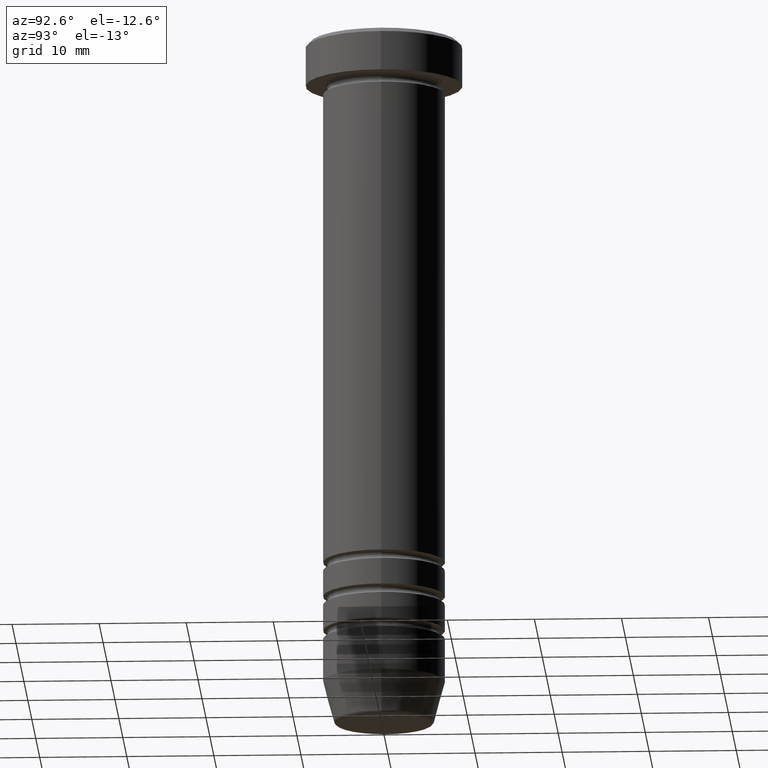
[diagram: clean part render]
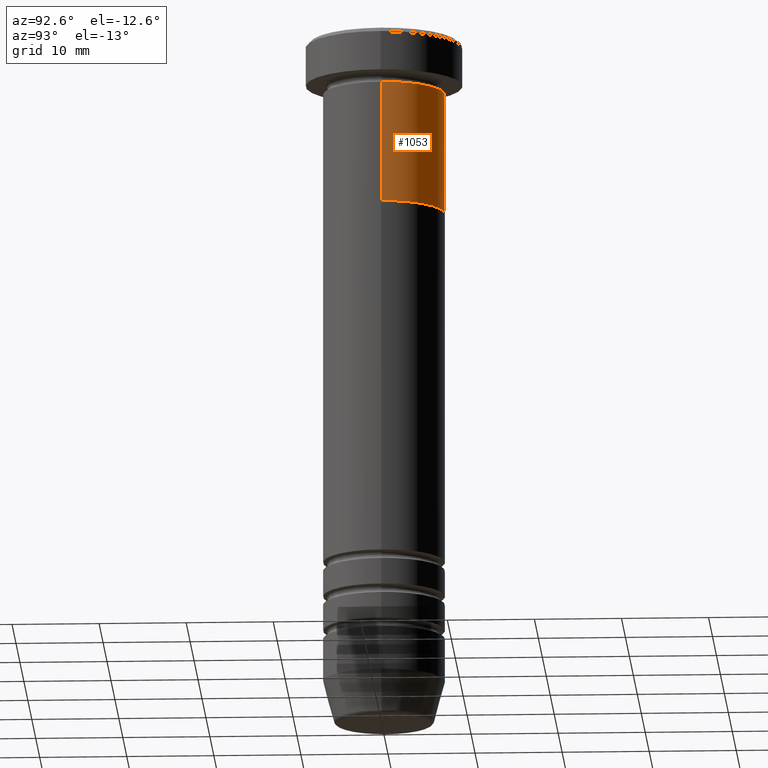
[diagram: same view with one face highlighted and labeled with its STEP entity id]
A machine part, auxiliary view. The second image highlights one B-rep face of the part: STEP entity #1053.
In plain terms, the highlighted cylindrical surface (partial cylindrical patch) has radius 7 mm, axis along (-0, -0, 1).
Its self-contained STEP definition (entity closure, byte-faithful):
#20 = CARTESIAN_POINT ( 'NONE',  ( 0.000000000000000000, 0.000000000000000000, -6.000000000000001776 ) ) ;
#54 = CARTESIAN_POINT ( 'NONE',  ( -7.000000000000000000, 8.572527594031473190E-16, -20.00000000000000000 ) ) ;
#100 = CARTESIAN_POINT ( 'NONE',  ( -7.000000000000000000, 8.572527594031473190E-16, 0.000000000000000000 ) ) ;
#108 = VERTEX_POINT ( 'NONE', #527 ) ;
#127 = CYLINDRICAL_SURFACE ( 'NONE', #320, 7.000000000000000000 ) ;
#203 = ORIENTED_EDGE ( 'NONE', *, *, #798, .T. ) ;
#221 = CARTESIAN_POINT ( 'NONE',  ( 7.000000000000000000, 0.000000000000000000, 0.000000000000000000 ) ) ;
#251 = DIRECTION ( 'NONE',  ( -0.000000000000000000, -0.000000000000000000, 1.000000000000000000 ) ) ;
#275 = EDGE_LOOP ( 'NONE', ( #203, #478, #326, #971 ) ) ;
#288 = DIRECTION ( 'NONE',  ( -0.000000000000000000, -0.000000000000000000, 1.000000000000000000 ) ) ;
#320 = AXIS2_PLACEMENT_3D ( 'NONE', #543, #288, #377 ) ;
#321 = VERTEX_POINT ( 'NONE', #54 ) ;
#326 = ORIENTED_EDGE ( 'NONE', *, *, #690, .F. ) ;
#339 = EDGE_CURVE ( 'NONE', #1017, #108, #954, .T. ) ;
#356 = VECTOR ( 'NONE', #424, 1000.000000000000000 ) ;
#377 = DIRECTION ( 'NONE',  ( 1.000000000000000000, 0.000000000000000000, 0.000000000000000000 ) ) ;
#381 = CARTESIAN_POINT ( 'NONE',  ( 0.000000000000000000, 0.000000000000000000, -20.00000000000000000 ) ) ;
#424 = DIRECTION ( 'NONE',  ( -0.000000000000000000, -0.000000000000000000, 1.000000000000000000 ) ) ;
#461 = DIRECTION ( 'NONE',  ( -0.000000000000000000, -0.000000000000000000, 1.000000000000000000 ) ) ;
#478 = ORIENTED_EDGE ( 'NONE', *, *, #635, .T. ) ;
#527 = CARTESIAN_POINT ( 'NONE',  ( 7.000000000000000000, 0.000000000000000000, -6.000000000000001776 ) ) ;
#538 = AXIS2_PLACEMENT_3D ( 'NONE', #381, #461, #577 ) ;
#543 = CARTESIAN_POINT ( 'NONE',  ( 0.000000000000000000, 0.000000000000000000, 0.000000000000000000 ) ) ;
#577 = DIRECTION ( 'NONE',  ( 1.000000000000000000, 0.000000000000000000, 0.000000000000000000 ) ) ;
#635 = EDGE_CURVE ( 'NONE', #321, #724, #667, .T. ) ;
#667 = LINE ( 'NONE', #100, #356 ) ;
#674 = DIRECTION ( 'NONE',  ( 1.000000000000000000, 0.000000000000000000, 0.000000000000000000 ) ) ;
#690 = EDGE_CURVE ( 'NONE', #108, #724, #950, .T. ) ;
#724 = VERTEX_POINT ( 'NONE', #799 ) ;
#770 = CARTESIAN_POINT ( 'NONE',  ( 7.000000000000000000, 0.000000000000000000, -20.00000000000000000 ) ) ;
#798 = EDGE_CURVE ( 'NONE', #1017, #321, #1021, .T. ) ;
#799 = CARTESIAN_POINT ( 'NONE',  ( -7.000000000000000000, 8.572527594031473190E-16, -6.000000000000001776 ) ) ;
#875 = FACE_OUTER_BOUND ( 'NONE', #275, .T. ) ;
#878 = DIRECTION ( 'NONE',  ( -0.000000000000000000, -0.000000000000000000, 1.000000000000000000 ) ) ;
#950 = CIRCLE ( 'NONE', #1039, 7.000000000000000000 ) ;
#954 = LINE ( 'NONE', #221, #1036 ) ;
#971 = ORIENTED_EDGE ( 'NONE', *, *, #339, .F. ) ;
#1017 = VERTEX_POINT ( 'NONE', #770 ) ;
#1021 = CIRCLE ( 'NONE', #538, 7.000000000000000000 ) ;
#1036 = VECTOR ( 'NONE', #878, 1000.000000000000000 ) ;
#1039 = AXIS2_PLACEMENT_3D ( 'NONE', #20, #251, #674 ) ;
#1053 = ADVANCED_FACE ( 'NONE', ( #875 ), #127, .T. ) ;